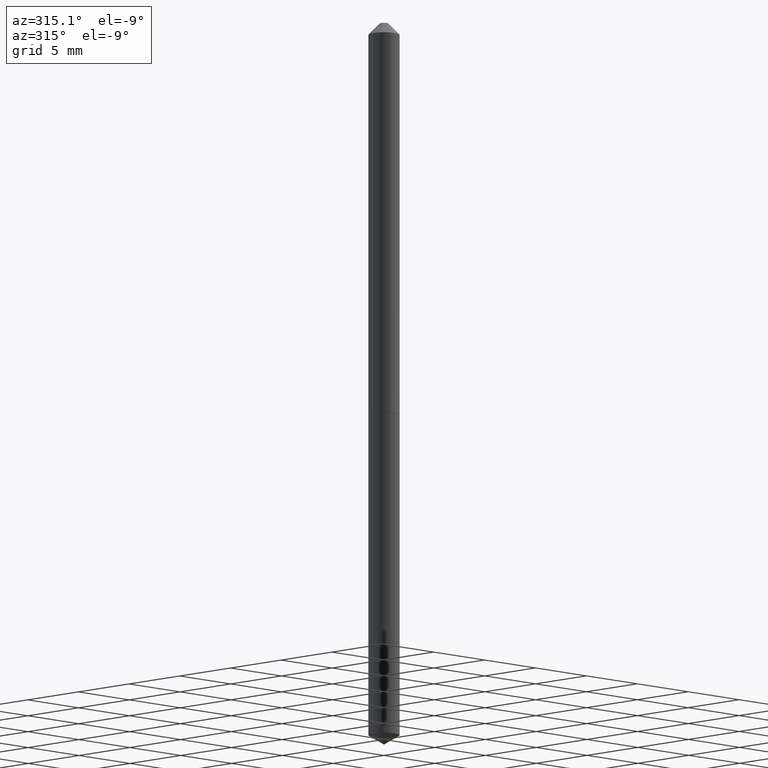
[diagram: clean part render]
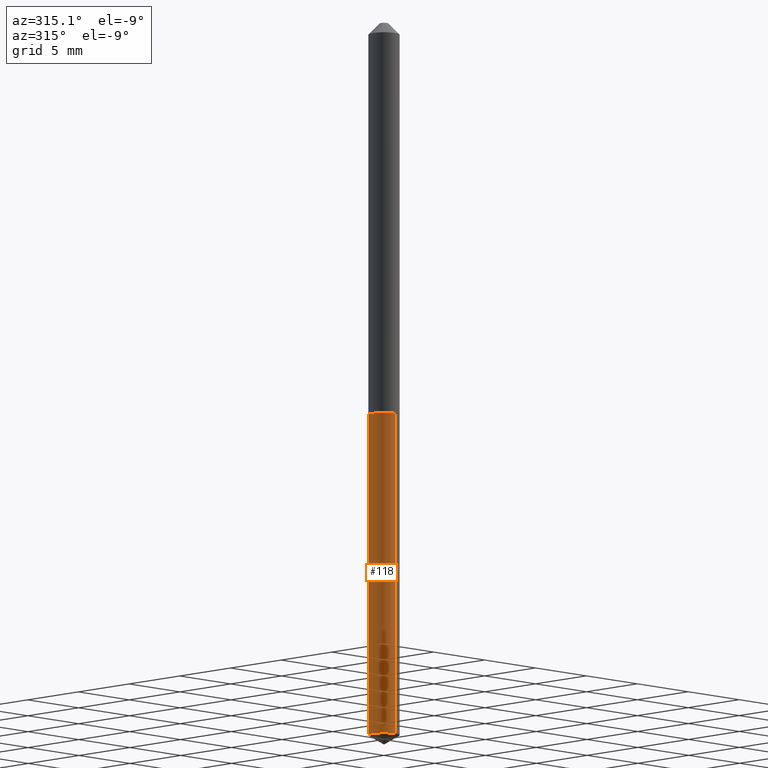
[diagram: same view with one face highlighted and labeled with its STEP entity id]
A machine part, auxiliary view. The second image highlights one B-rep face of the part: STEP entity #118.
In plain terms, the highlighted cylindrical surface (edge-blend (fillet) strip) has radius 1.0922 mm, axis along (-0, 0, 1).
Its self-contained STEP definition (entity closure, byte-faithful):
#1 = CARTESIAN_POINT ( 'NONE',  ( 2.655779123517058654E-29, -3.791748733983655635E-15, -1.086000000000000076 ) ) ;
#24 = AXIS2_PLACEMENT_3D ( 'NONE', #1, #205, #386 ) ;
#93 = EDGE_CURVE ( 'NONE', #254, #344, #309, .T. ) ;
#101 = ORIENTED_EDGE ( 'NONE', *, *, #379, .T. ) ;
#118 = ADVANCED_FACE ( 'NONE', ( #261 ), #256, .T. ) ;
#142 = CARTESIAN_POINT ( 'NONE',  ( 3.055333763768914225E-16, 0.04299999999999620792, -1.086000000000000076 ) ) ;
#146 = DIRECTION ( 'NONE',  ( -6.982962677686265922E-15, -1.000000000000000000, 6.353134868986658336E-15 ) ) ;
#153 = CARTESIAN_POINT ( 'NONE',  ( -3.002673951404828859E-16, -0.04300000000000379213, -1.085999999999999854 ) ) ;
#160 = AXIS2_PLACEMENT_3D ( 'NONE', #209, #363, #242 ) ;
#167 = LINE ( 'NONE', #289, #211 ) ;
#173 = LINE ( 'NONE', #352, #176 ) ;
#176 = VECTOR ( 'NONE', #324, 39.37007874015748143 ) ;
#185 = ORIENTED_EDGE ( 'NONE', *, *, #301, .F. ) ;
#205 = DIRECTION ( 'NONE',  ( -2.445452508324315047E-29, 3.491504678307458677E-15, 1.000000000000000000 ) ) ;
#209 = CARTESIAN_POINT ( 'NONE',  ( 2.655779123517058654E-29, -3.791748733983655635E-15, -1.086000000000000076 ) ) ;
#211 = VECTOR ( 'NONE', #389, 39.37007874015748143 ) ;
#224 = VERTEX_POINT ( 'NONE', #153 ) ;
#234 = CARTESIAN_POINT ( 'NONE',  ( 3.055333763768911760E-16, 0.04299999999999309236, -1.974162993381815445 ) ) ;
#235 = AXIS2_PLACEMENT_3D ( 'NONE', #264, #258, #146 ) ;
#242 = DIRECTION ( 'NONE',  ( -6.982962677686265922E-15, -1.000000000000000000, 3.176567434493329168E-15 ) ) ;
#251 = ORIENTED_EDGE ( 'NONE', *, *, #328, .F. ) ;
#254 = VERTEX_POINT ( 'NONE', #234 ) ;
#256 = CYLINDRICAL_SURFACE ( 'NONE', #24, 0.04300000000000000350 ) ;
#257 = CARTESIAN_POINT ( 'NONE',  ( -3.002673951404610936E-16, -0.04300000000000687994, -1.974162993381814779 ) ) ;
#258 = DIRECTION ( 'NONE',  ( -2.445452508324315047E-29, 3.491504678307458677E-15, 1.000000000000000000 ) ) ;
#261 = FACE_OUTER_BOUND ( 'NONE', #270, .T. ) ;
#264 = CARTESIAN_POINT ( 'NONE',  ( 4.827739543483450780E-29, -6.892773980475820640E-15, -1.974162993381815001 ) ) ;
#270 = EDGE_LOOP ( 'NONE', ( #251, #318, #101, #185 ) ) ;
#289 = CARTESIAN_POINT ( 'NONE',  ( 3.055333763768695809E-16, 0.04299999999999620792, -1.086000000000000076 ) ) ;
#301 = EDGE_CURVE ( 'NONE', #333, #224, #334, .T. ) ;
#309 = CIRCLE ( 'NONE', #235, 0.04300000000000000350 ) ;
#318 = ORIENTED_EDGE ( 'NONE', *, *, #93, .T. ) ;
#324 = DIRECTION ( 'NONE',  ( -2.445452508324315327E-29, 3.491504678307459072E-15, 1.000000000000000000 ) ) ;
#328 = EDGE_CURVE ( 'NONE', #254, #333, #167, .T. ) ;
#333 = VERTEX_POINT ( 'NONE', #142 ) ;
#334 = CIRCLE ( 'NONE', #160, 0.04300000000000000350 ) ;
#344 = VERTEX_POINT ( 'NONE', #257 ) ;
#352 = CARTESIAN_POINT ( 'NONE',  ( -3.002673951404828859E-16, -0.04300000000000379213, -1.085999999999999854 ) ) ;
#363 = DIRECTION ( 'NONE',  ( -2.445452508324315047E-29, 3.491504678307458677E-15, 1.000000000000000000 ) ) ;
#379 = EDGE_CURVE ( 'NONE', #344, #224, #173, .T. ) ;
#386 = DIRECTION ( 'NONE',  ( -6.982962677686265922E-15, -1.000000000000000000, 3.176567434493329168E-15 ) ) ;
#389 = DIRECTION ( 'NONE',  ( -2.445452508324315327E-29, 3.491504678307459072E-15, 1.000000000000000000 ) ) ;